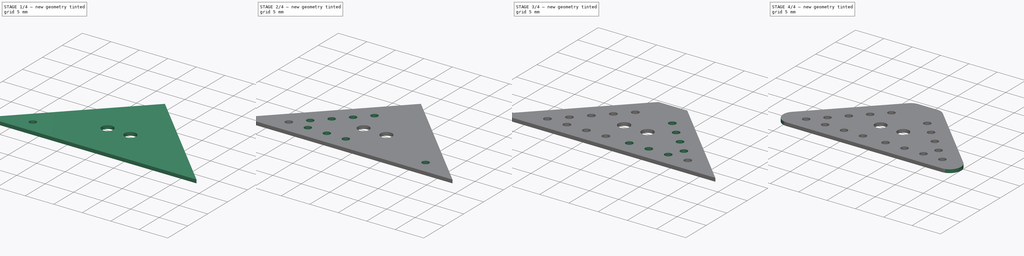
[diagram: build sequence overview — one tinted view per stage of 4, left to right]
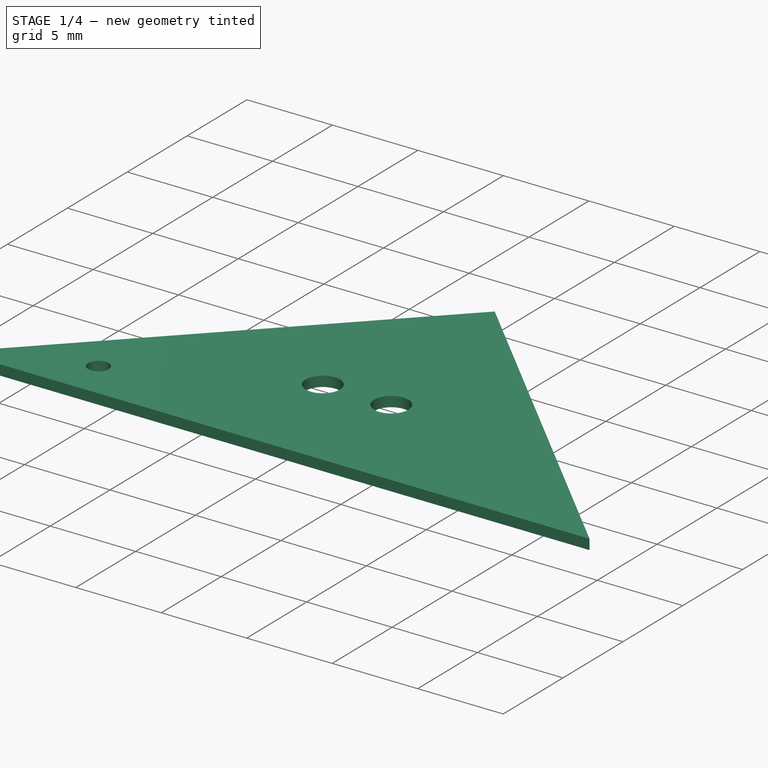
[diagram: stage 1 of 4 — iso view after this stage's code; geometry added in this stage tinted green]
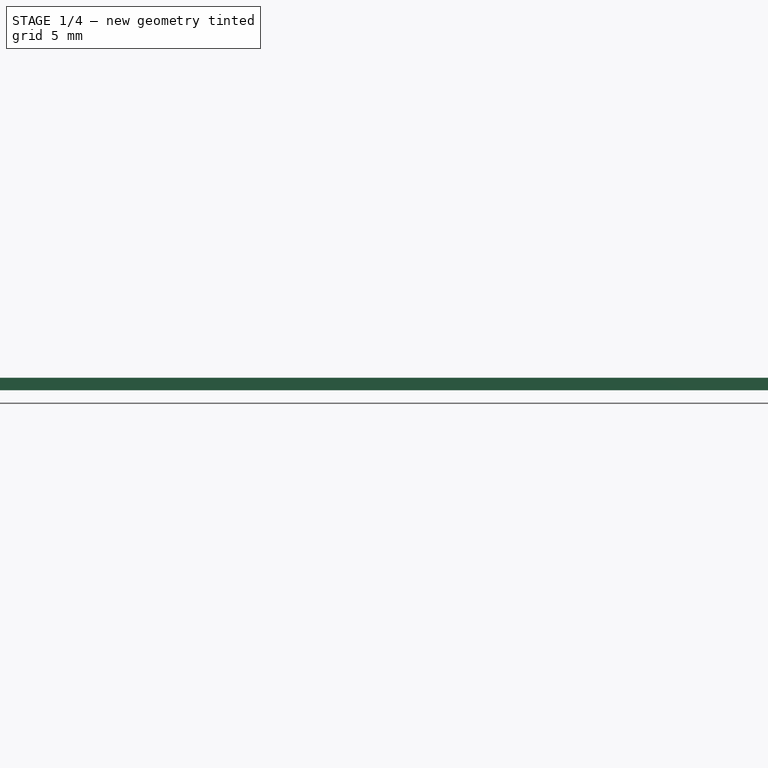
[diagram: stage 1 of 4 — front view after this stage's code; geometry added in this stage tinted green]
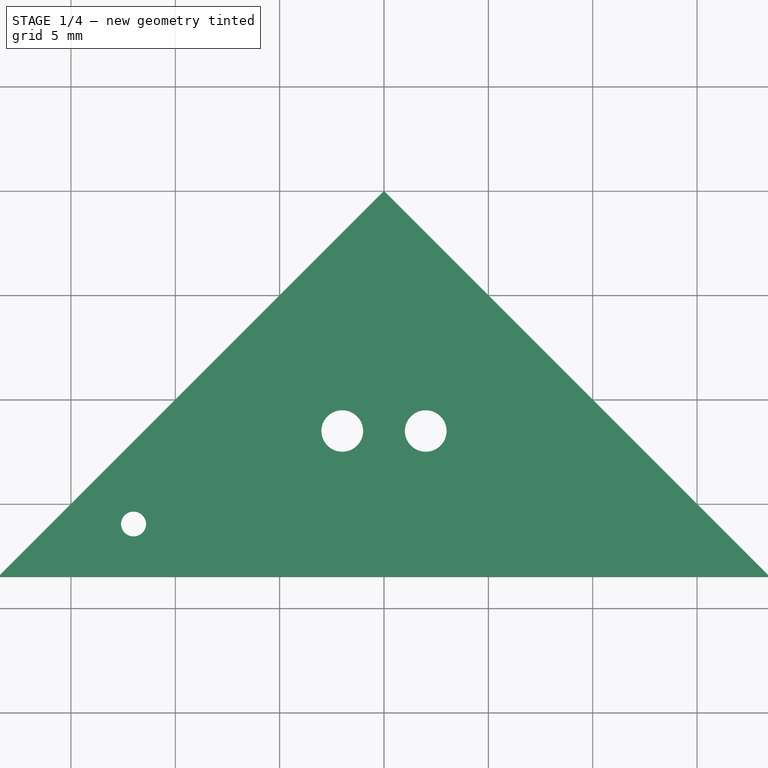
[diagram: stage 1 of 4 — top view after this stage's code; geometry added in this stage tinted green]
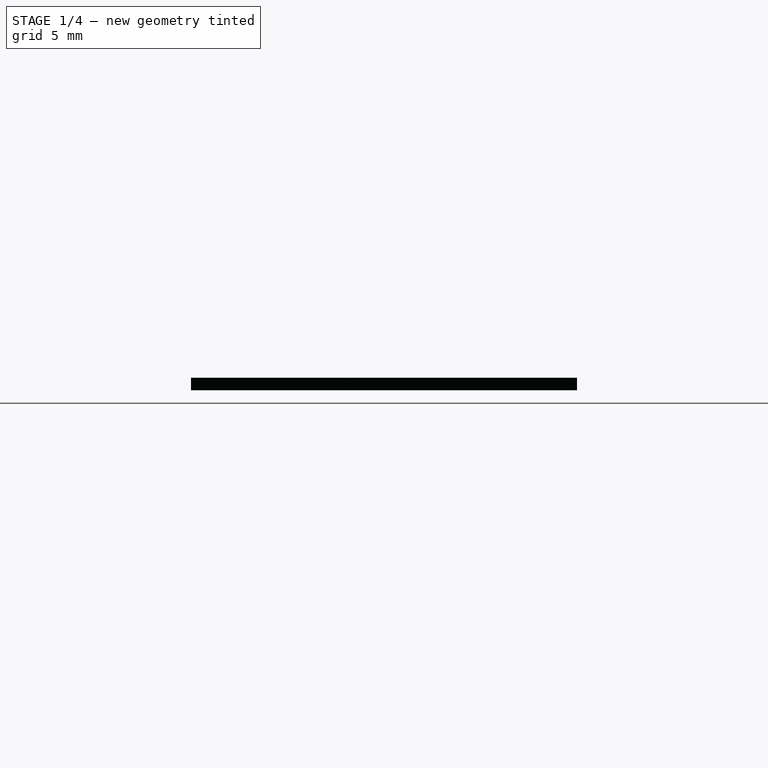
[diagram: stage 1 of 4 — right view after this stage's code; geometry added in this stage tinted green]
FCSTD DOCUMENT  (FreeCAD 0.18R4 (GitTag))
Label: cornerV3
License: All rights reserved
LicenseURL: http://en.wikipedia.org/wiki/All_rights_reserved
objects: PartDesign::LinearPattern×4, Sketcher::SketchObject×3, PartDesign::Pocket×2, PartDesign::Fillet×2, PartDesign::Pad×1, PartDesign::Chamfer×1, PartDesign::Body×1
note: 17 computed .brp shape members not serialized (recipe doc carries the construction recipe); baked Part::Feature solids carry a one-line shape summary decoded from their .brp

FEATURE [Sketcher::SketchObject] Sketch
  MapMode = 5
  Support = -> [XY_Plane]
  sketch-geometry (6):
    g0: LineSegment StartX=0 StartY=0 StartZ=0 EndX=-18.5 EndY=-18.5 EndZ=0
    g1: LineSegment StartX=-18.5 StartY=-18.5 StartZ=0 EndX=18.5 EndY=-18.5 EndZ=0
    g2: Circle CenterX=-2 CenterY=-11.5 CenterZ=0 NormalX=0 NormalY=0 NormalZ=1 AngleXU=0 Radius=1
    g3: LineSegment StartX=0 StartY=0 StartZ=0 EndX=18.5 EndY=-18.5 EndZ=0
    g4: LineSegment [constr] StartX=-2 StartY=-11.5 StartZ=0 EndX=2 EndY=-11.5 EndZ=0
    g5: Circle CenterX=2 CenterY=-11.5 CenterZ=0 NormalX=0 NormalY=0 NormalZ=1 AngleXU=0 Radius=1
  constraints (16):
    c: Horizontal(g1)
    c: Coincident(g1,g0)
    c: Coincident(g0,g-1)
    c: DistanceY(g0,g0) = 18.5
    c: DistanceX(g2,g0) = 2
    c: DistanceY(g2,g0) = 11.5
    c: Radius(g2) = 1
    c: Horizontal(g4)
    c: Coincident(g4,g2)
    c: Equal(g5,g2)
    c: DistanceX(g0,g5) = 2
    c: Coincident(g3,g0)
    c: Coincident(g3,g1)
    c: Equal(g3,g0)
    c: Angle(g0,g3) = 1.5708
    c: Coincident(g4,g5)
FEATURE [PartDesign::Pad] Pad
  Length = 0.6
  Length2 = 100
  Profile = -> Sketch
  Type = 0
FEATURE [Sketcher::SketchObject] Sketch001
  MapMode = 5
  Placement = pos=(0,0,0.6) rot=(0,0,1;0rad)
  Support = -> [Pad]
  sketch-geometry (5):
    g0: Circle CenterX=-12 CenterY=-15.9598 CenterZ=0 NormalX=0 NormalY=0 NormalZ=1 AngleXU=0 Radius=0.6
    g1: LineSegment [constr] StartX=-12 StartY=-15.9598 StartZ=0 EndX=1.9799 EndY=-1.9799 EndZ=0
    g2: LineSegment [constr] StartX=1.9799 StartY=-1.9799 StartZ=0 EndX=-4e-16 EndY=2e-16 EndZ=0
    g3: LineSegment [constr] StartX=-12 StartY=-15.9598 StartZ=0 EndX=-13.9799 EndY=-13.9799 EndZ=0
    g4: LineSegment [constr] StartX=-13.9799 StartY=-13.9799 StartZ=0 EndX=0 EndY=0 EndZ=0
  constraints (13):
    c: Radius(g0) = 0.6
    c: Perpendicular(g1,g2)
    c: Coincident(g1,g2)
    c: Coincident(g2,g-1)
    c: Parallel(g4,g1)
    c: Coincident(g4,g3)
    c: Coincident(g3,g1)
    c: Perpendicular(g1,g3)
    c: Coincident(g-1,g4)
    c: Distance(g2) = 2.8
    c: Angle(g2,g-1) = 0.785398
    c: Coincident(g0,g1)
    c: DistanceX(g0,g-1) = 12
FEATURE [PartDesign::Pocket] Pocket
  BaseFeature = -> Pad
  Length = 5
  Length2 = 100
  Profile = -> Sketch001
  Type = 1
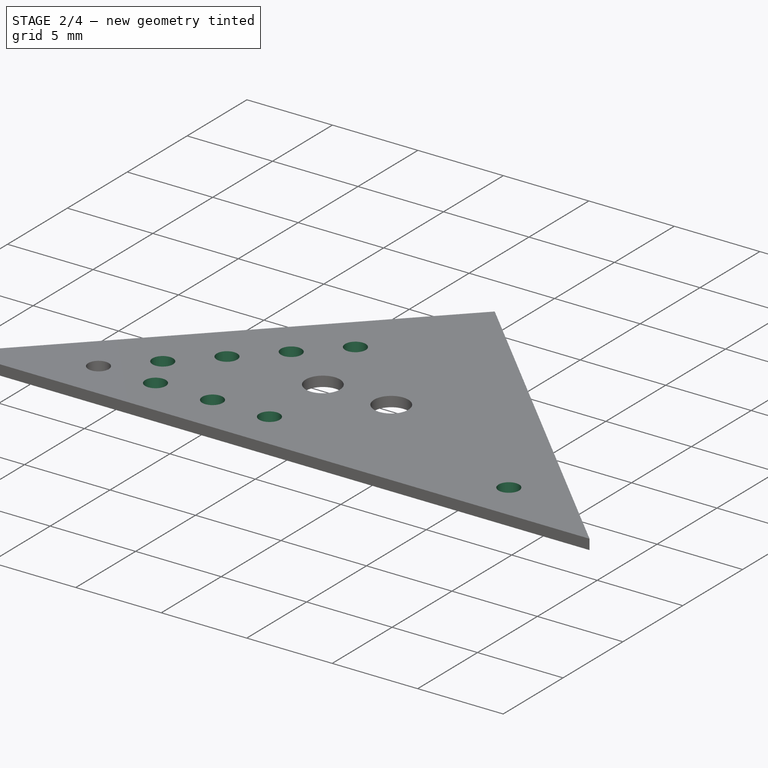
[diagram: stage 2 of 4 — iso view after this stage's code; geometry added in this stage tinted green]
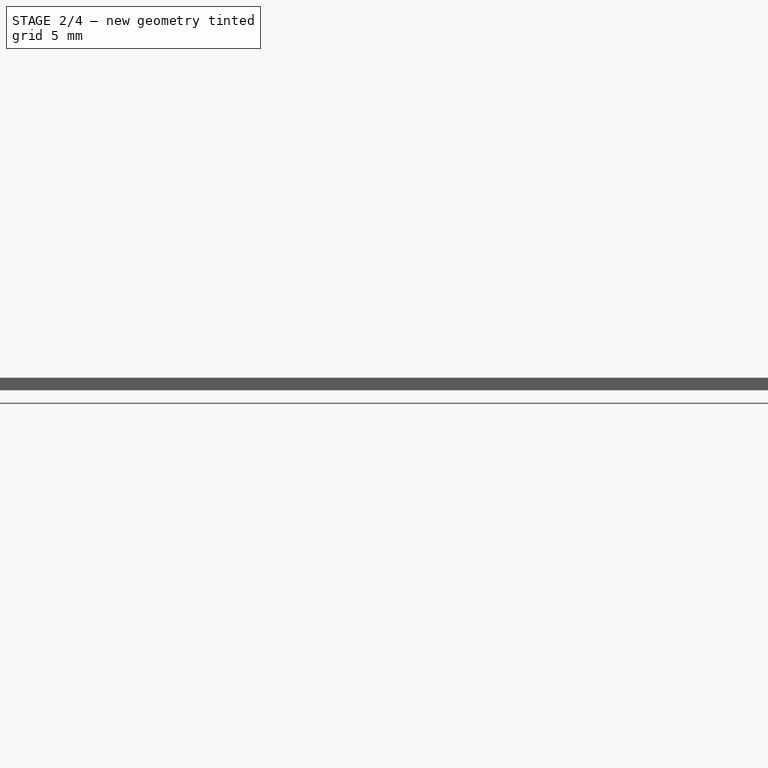
[diagram: stage 2 of 4 — front view after this stage's code; geometry added in this stage tinted green]
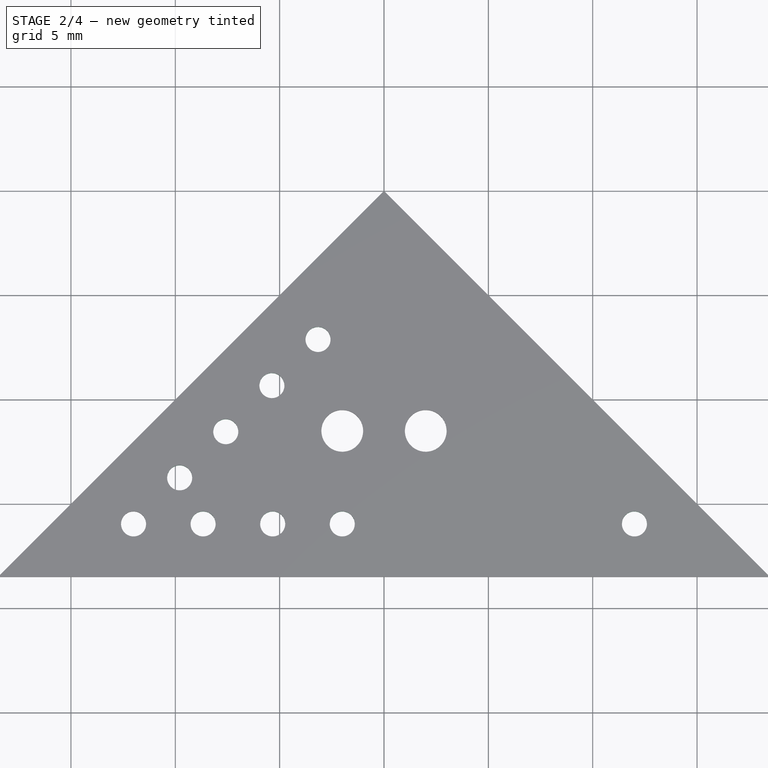
[diagram: stage 2 of 4 — top view after this stage's code; geometry added in this stage tinted green]
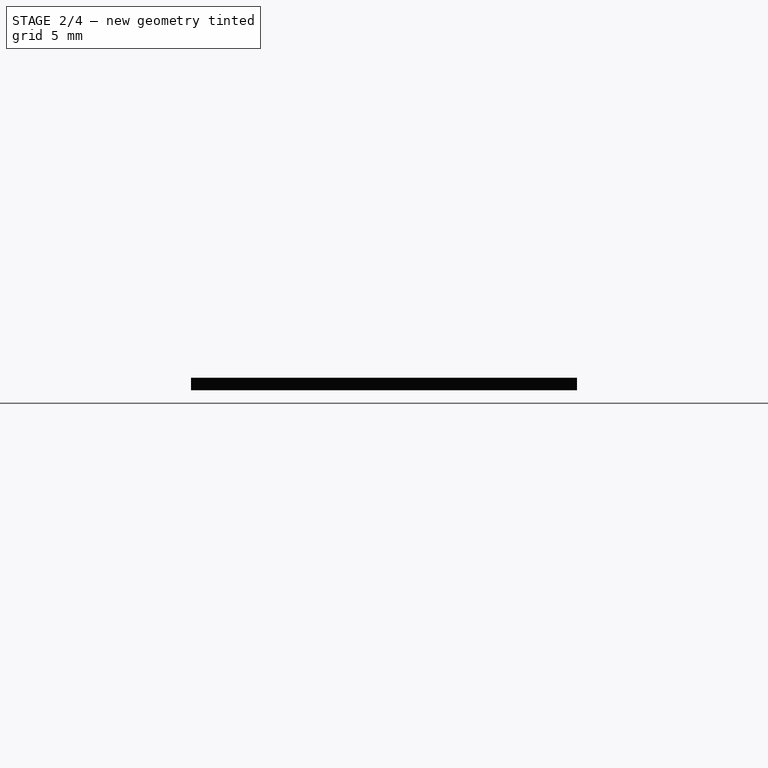
[diagram: stage 2 of 4 — right view after this stage's code; geometry added in this stage tinted green]
FEATURE [PartDesign::LinearPattern] LinearPattern
  BaseFeature = -> Pocket
  Direction = -> Pocket [Edge4]
  Length = 12.5
  Occurrences = 5
  Originals = -> [Pocket]
  Reversed = true
FEATURE [PartDesign::LinearPattern] LinearPattern001
  BaseFeature = -> LinearPattern
  Direction = -> LinearPattern [Edge9]
  Length = 10
  Occurrences = 4
  Originals = -> [Pocket]
FEATURE [Sketcher::SketchObject] Sketch002
  MapMode = 5
  Placement = pos=(0,0,0.6) rot=(0,0,1;0rad)
  Support = -> [Pocket]
  sketch-geometry (5):
    g0: Circle CenterX=12 CenterY=-15.9598 CenterZ=0 NormalX=0 NormalY=0 NormalZ=1 AngleXU=0 Radius=0.6
    g1: LineSegment [constr] StartX=0 StartY=4e-16 StartZ=0 EndX=13.9799 EndY=-13.9799 EndZ=0
    g2: LineSegment [constr] StartX=13.9799 StartY=-13.9799 StartZ=0 EndX=12 EndY=-15.9598 EndZ=0
    g3: LineSegment [constr] StartX=12 StartY=-15.9598 StartZ=0 EndX=-1.9799 EndY=-1.9799 EndZ=0
    g4: LineSegment [constr] StartX=-1.9799 StartY=-1.9799 StartZ=0 EndX=0 EndY=4e-16 EndZ=0
  constraints (13):
    c: Radius(g0) = 0.6
    c: Coincident(g1,g2)
    c: Coincident(g2,g3)
    c: Coincident(g3,g4)
    c: Coincident(g4,g1)
    c: Perpendicular(g1,g4)
    c: Perpendicular(g1,g2)
    c: Perpendicular(g3,g2)
    c: Coincident(g1,g-1)
    c: Distance(g4) = 2.8
    c: Coincident(g0,g2)
    c: Angle(g1,g-1) = 0.785398
    c: DistanceX(g-1,g0) = 12
FEATURE [PartDesign::Pocket] Pocket001
  BaseFeature = -> LinearPattern001
  Length = 5
  Length2 = 100
  Profile = -> Sketch002
  Type = 1
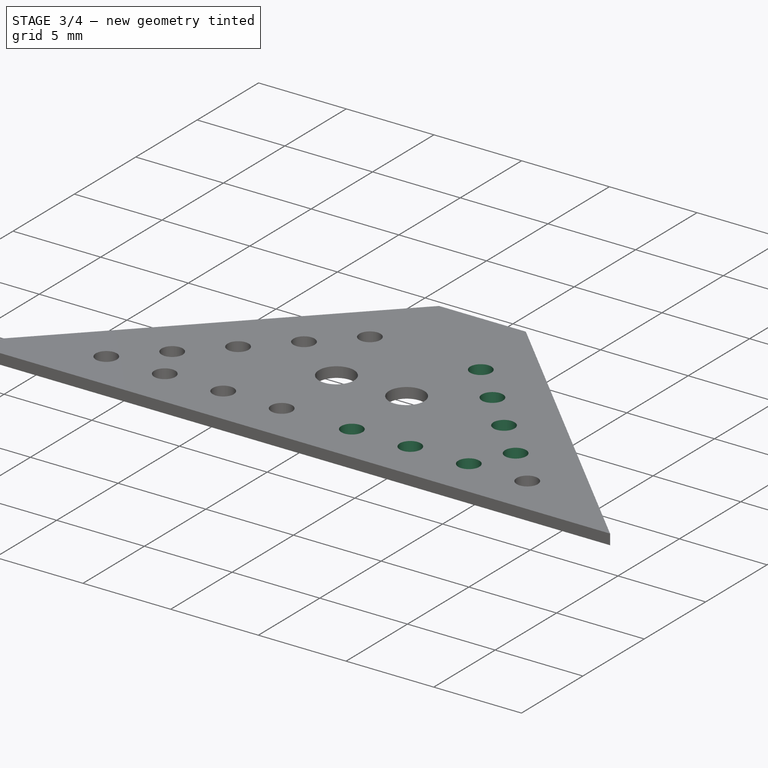
[diagram: stage 3 of 4 — iso view after this stage's code; geometry added in this stage tinted green]
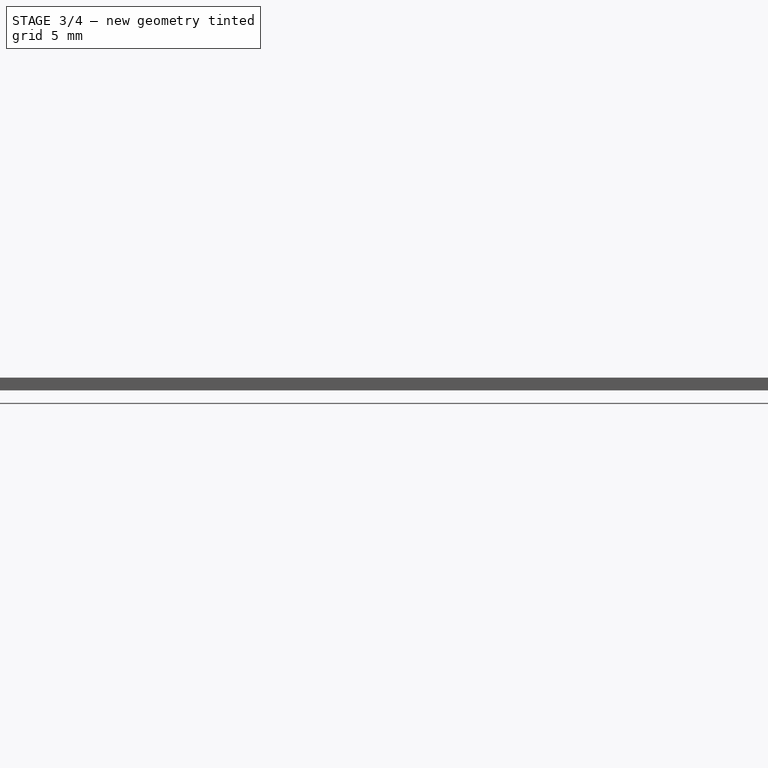
[diagram: stage 3 of 4 — front view after this stage's code; geometry added in this stage tinted green]
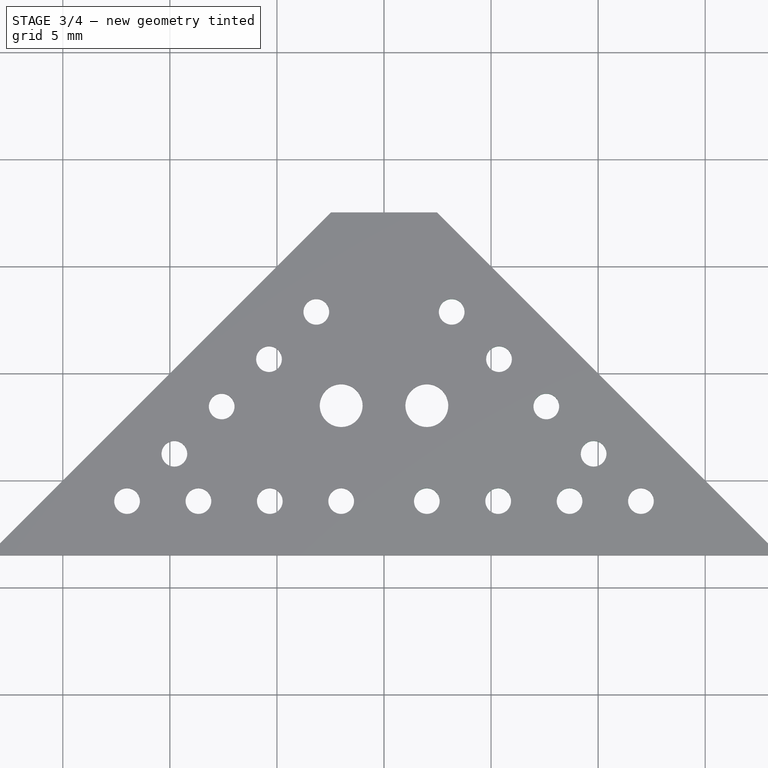
[diagram: stage 3 of 4 — top view after this stage's code; geometry added in this stage tinted green]
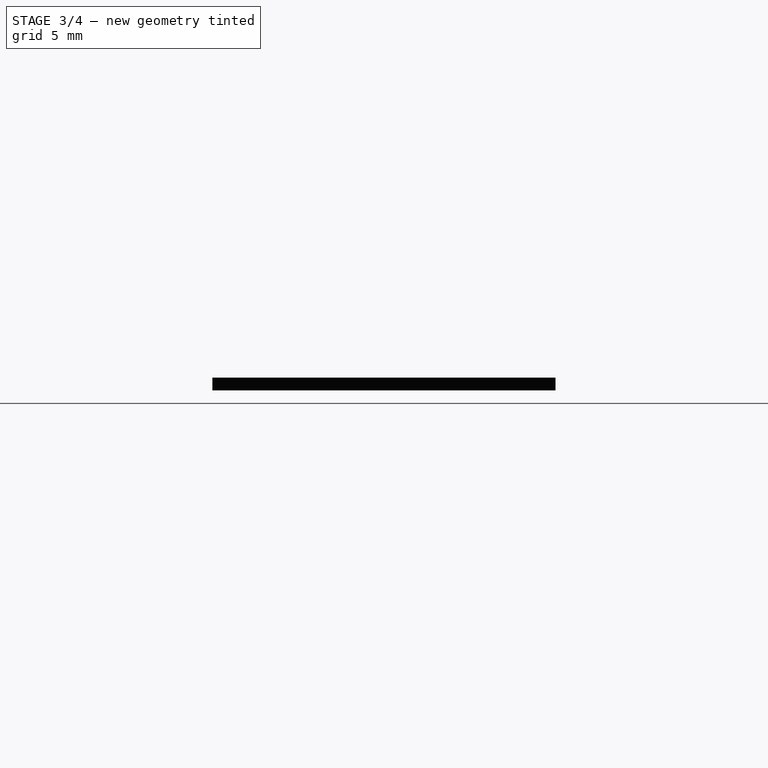
[diagram: stage 3 of 4 — right view after this stage's code; geometry added in this stage tinted green]
FEATURE [PartDesign::LinearPattern] LinearPattern002
  BaseFeature = -> Pocket001
  Direction = -> Pocket001 [Edge7]
  Length = 12.5
  Occurrences = 5
  Originals = -> [Pocket001]
  Reversed = true
FEATURE [PartDesign::LinearPattern] LinearPattern003
  BaseFeature = -> LinearPattern002
  Direction = -> LinearPattern002 [Edge9]
  Length = 10
  Occurrences = 4
  Originals = -> [Pocket001]
  Reversed = true
FEATURE [PartDesign::Chamfer] Chamfer
  Base = -> LinearPattern003 [Edge1]
  BaseFeature = -> LinearPattern003
  Size = 3.5
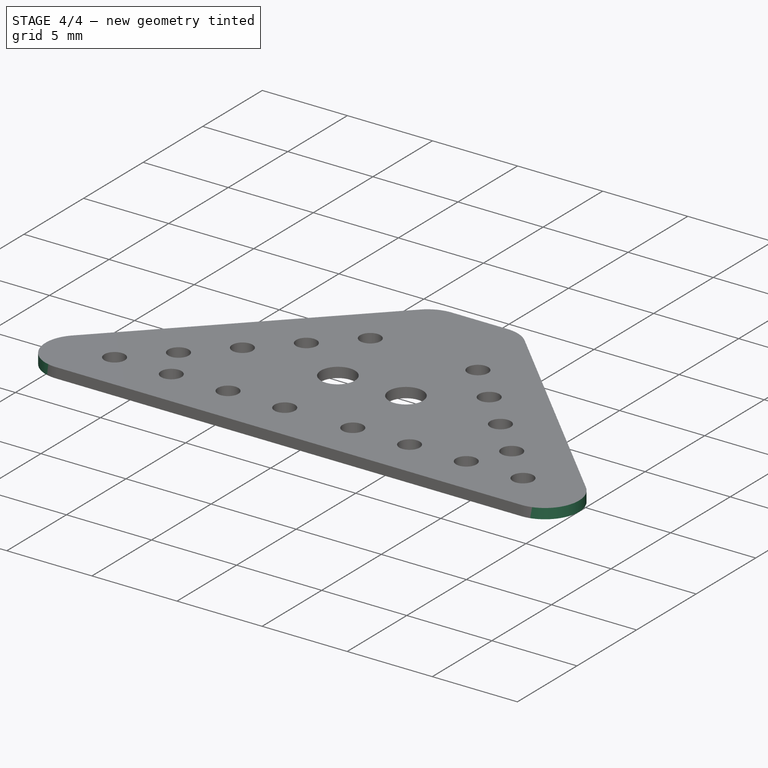
[diagram: stage 4 of 4 — iso view after this stage's code; geometry added in this stage tinted green]
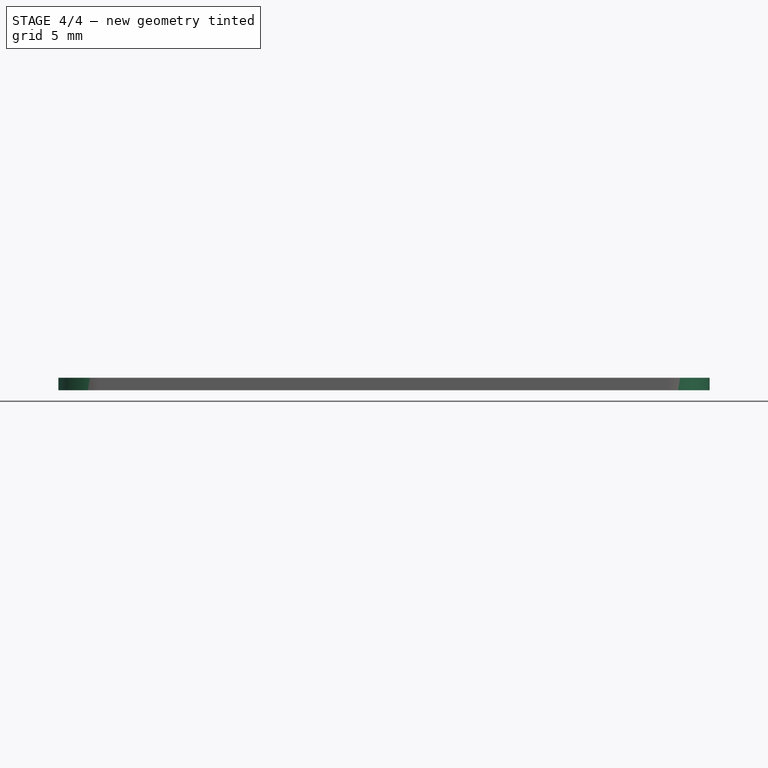
[diagram: stage 4 of 4 — front view after this stage's code; geometry added in this stage tinted green]
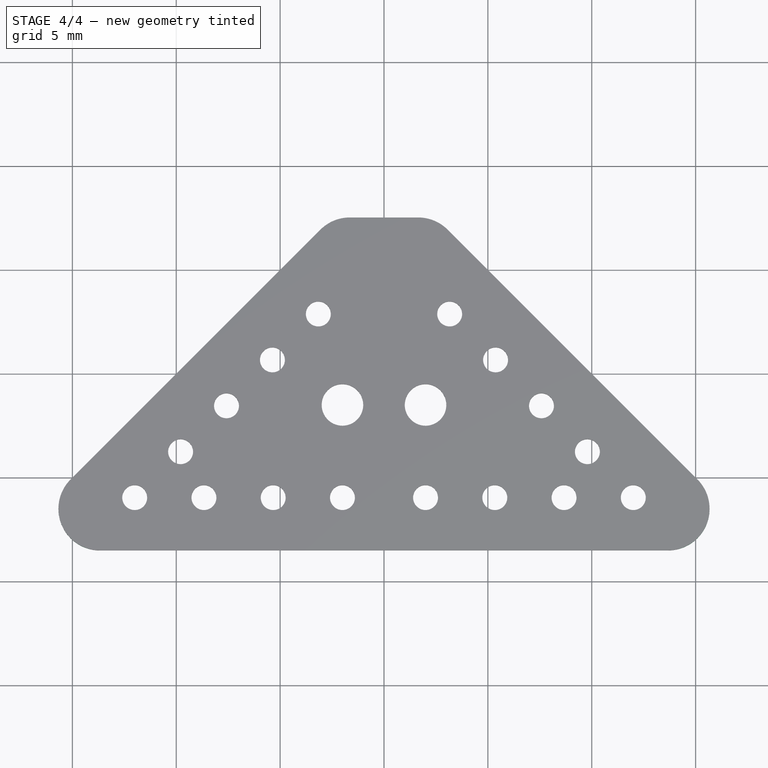
[diagram: stage 4 of 4 — top view after this stage's code; geometry added in this stage tinted green]
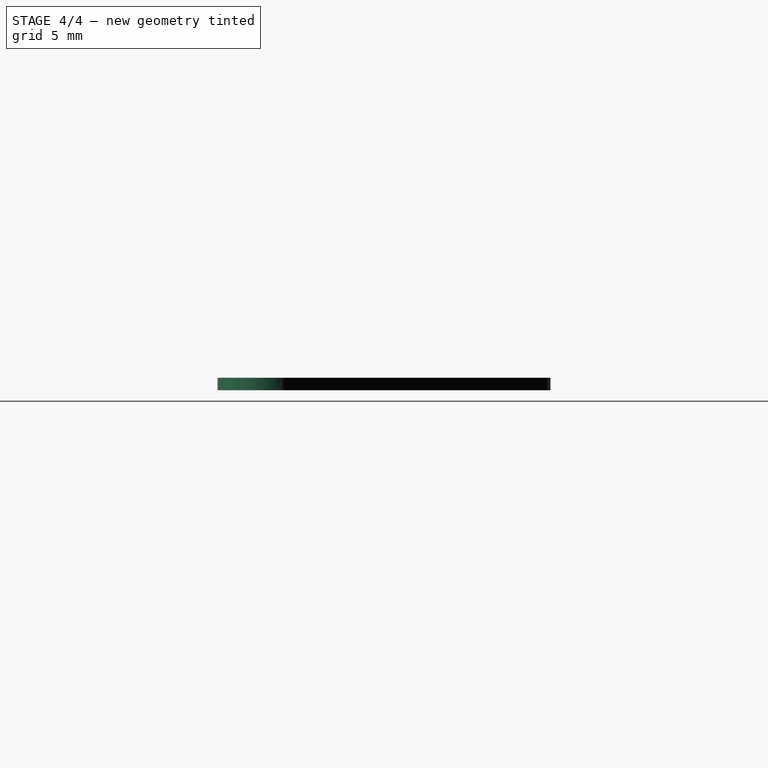
[diagram: stage 4 of 4 — right view after this stage's code; geometry added in this stage tinted green]
FEATURE [PartDesign::Fillet] Fillet
  Base = -> Chamfer [Edge2,Edge26]
  BaseFeature = -> Chamfer
  Radius = 2
FEATURE [PartDesign::Fillet] Fillet001
  Base = -> Fillet [Edge30,Edge3]
  BaseFeature = -> Fillet
  Radius = 2
FEATURE [PartDesign::Body] Body
  Group = -> [Sketch,Pad,Sketch001,Pocket,LinearPattern,LinearPattern001,Sketch002,Pocket001,LinearPattern002,LinearPattern003,Chamfer,Fillet,Fillet001]
  Origin = -> Origin
  Tip = -> Fillet001
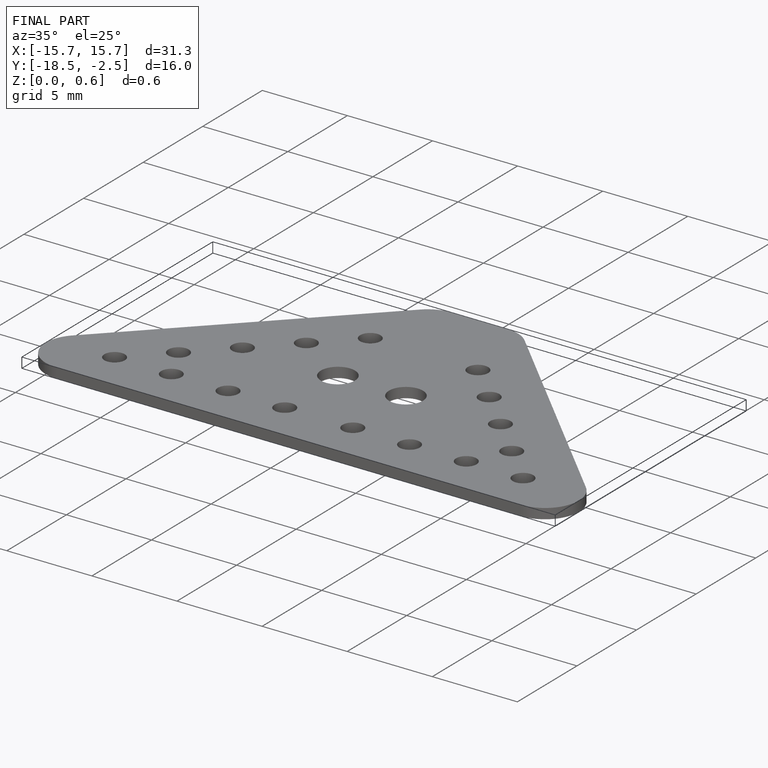
[diagram: finished part — iso view with bounding-box wireframe]
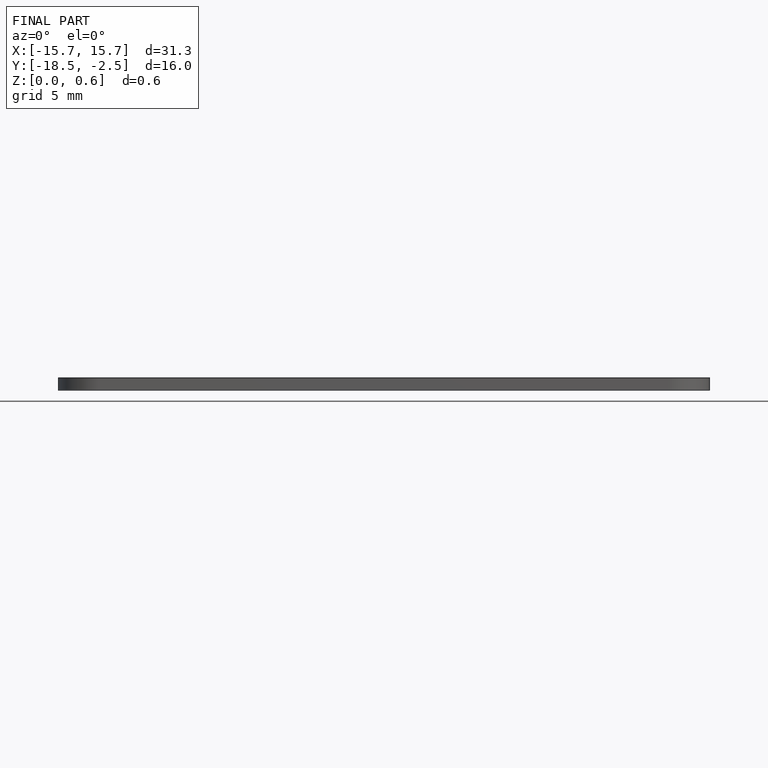
[diagram: finished part — front view with bounding-box wireframe]
